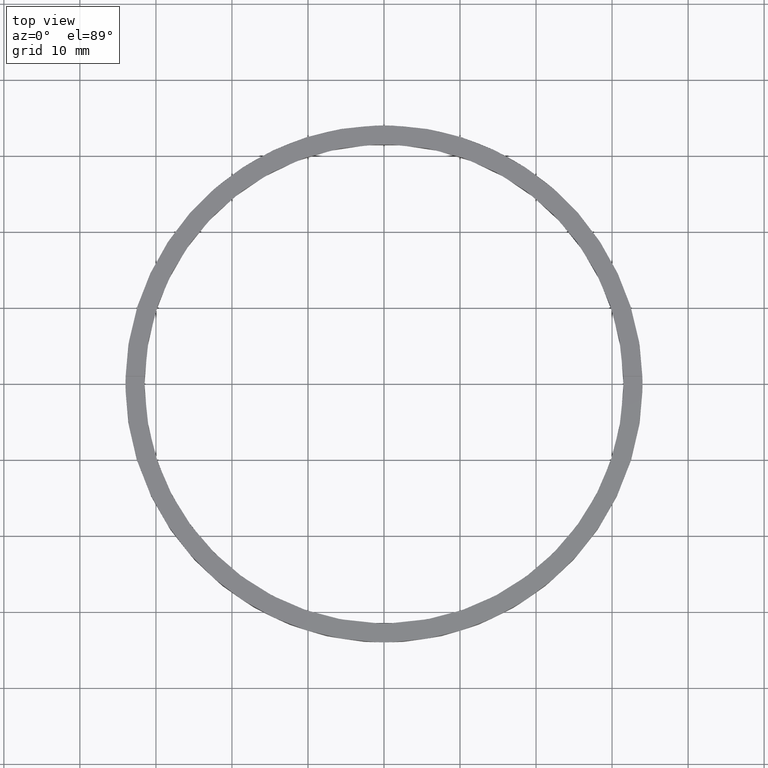
[diagram: clean part render]
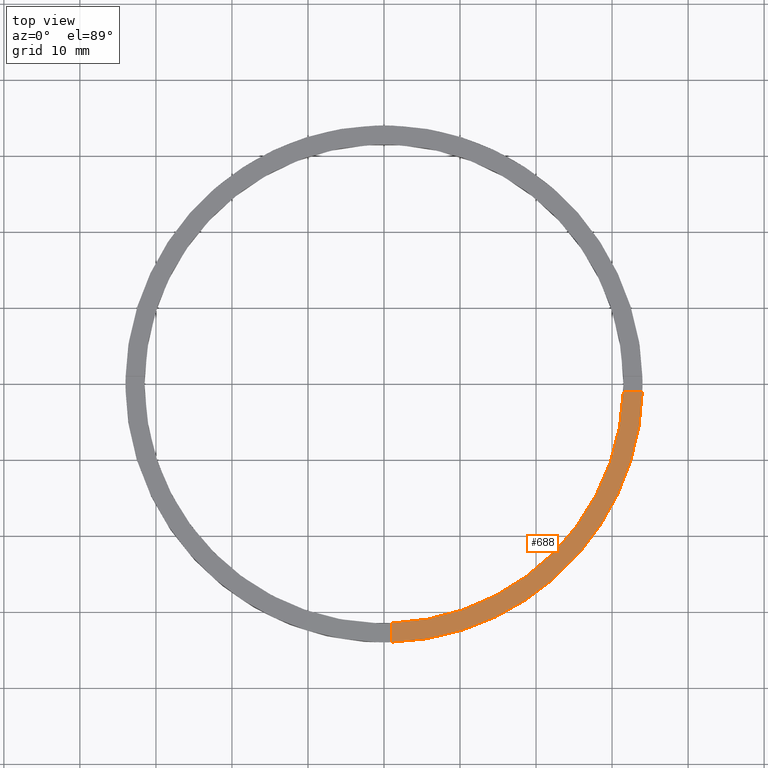
[diagram: same view with one face highlighted and labeled with its STEP entity id]
A machine part, top view. The second image highlights one B-rep face of the part: STEP entity #688.
In plain terms, the highlighted planar face has unit normal (0, 0, 1).
Its self-contained STEP definition (entity closure, byte-faithful):
#12 = AXIS2_PLACEMENT_3D ( 'NONE', #532, #288, #674 ) ;
#40 = VECTOR ( 'NONE', #556, 1000.000000000000000 ) ;
#51 = CARTESIAN_POINT ( 'NONE',  ( 0.9999999999998380185, -24.00000000000018119, 3.000000000000000000 ) ) ;
#88 = AXIS2_PLACEMENT_3D ( 'NONE', #304, #494, #578 ) ;
#125 = DIRECTION ( 'NONE',  ( 1.000000000000000000, 0.000000000000000000, -0.000000000000000000 ) ) ;
#155 = VERTEX_POINT ( 'NONE', #412 ) ;
#186 = CIRCLE ( 'NONE', #88, 34.00000000000000000 ) ;
#189 = CARTESIAN_POINT ( 'NONE',  ( 33.98529093593285211, -1.000000000000158096, 3.000000000000000000 ) ) ;
#199 = AXIS2_PLACEMENT_3D ( 'NONE', #366, #409, #125 ) ;
#208 = EDGE_CURVE ( 'NONE', #155, #354, #487, .T. ) ;
#211 = CARTESIAN_POINT ( 'NONE',  ( 0.9999999999998393507, -33.98529093593285921, 3.000000000000000000 ) ) ;
#228 = VECTOR ( 'NONE', #594, 1000.000000000000000 ) ;
#229 = EDGE_CURVE ( 'NONE', #388, #155, #740, .T. ) ;
#275 = PLANE ( 'NONE',  #199 ) ;
#283 = CARTESIAN_POINT ( 'NONE',  ( 23.99999999999999289, -1.000000000000158762, 3.000000000000000000 ) ) ;
#288 = DIRECTION ( 'NONE',  ( 0.000000000000000000, 0.000000000000000000, 1.000000000000000000 ) ) ;
#304 = CARTESIAN_POINT ( 'NONE',  ( 0.000000000000000000, 0.000000000000000000, 3.000000000000000000 ) ) ;
#321 = LINE ( 'NONE', #51, #40 ) ;
#343 = ORIENTED_EDGE ( 'NONE', *, *, #508, .F. ) ;
#354 = VERTEX_POINT ( 'NONE', #189 ) ;
#366 = CARTESIAN_POINT ( 'NONE',  ( 0.000000000000000000, 0.000000000000000000, 3.000000000000000000 ) ) ;
#388 = VERTEX_POINT ( 'NONE', #570 ) ;
#405 = ORIENTED_EDGE ( 'NONE', *, *, #406, .T. ) ;
#406 = EDGE_CURVE ( 'NONE', #652, #354, #186, .T. ) ;
#409 = DIRECTION ( 'NONE',  ( 0.000000000000000000, 0.000000000000000000, 1.000000000000000000 ) ) ;
#412 = CARTESIAN_POINT ( 'NONE',  ( 31.48412298286232414, -1.000000000000158318, 3.000000000000000000 ) ) ;
#487 = LINE ( 'NONE', #283, #228 ) ;
#494 = DIRECTION ( 'NONE',  ( 0.000000000000000000, 0.000000000000000000, 1.000000000000000000 ) ) ;
#508 = EDGE_CURVE ( 'NONE', #652, #388, #321, .T. ) ;
#532 = CARTESIAN_POINT ( 'NONE',  ( 0.000000000000000000, 0.000000000000000000, 3.000000000000000000 ) ) ;
#535 = EDGE_LOOP ( 'NONE', ( #673, #622, #343, #405 ) ) ;
#556 = DIRECTION ( 'NONE',  ( -1.301042606982605074E-16, 1.000000000000000000, -0.000000000000000000 ) ) ;
#570 = CARTESIAN_POINT ( 'NONE',  ( 0.9999999999998391287, -31.48412298286233479, 3.000000000000000000 ) ) ;
#578 = DIRECTION ( 'NONE',  ( 1.000000000000000000, 0.000000000000000000, 0.000000000000000000 ) ) ;
#593 = FACE_OUTER_BOUND ( 'NONE', #535, .T. ) ;
#594 = DIRECTION ( 'NONE',  ( 1.000000000000000000, 6.505213034913025371E-17, 0.000000000000000000 ) ) ;
#622 = ORIENTED_EDGE ( 'NONE', *, *, #229, .F. ) ;
#652 = VERTEX_POINT ( 'NONE', #211 ) ;
#673 = ORIENTED_EDGE ( 'NONE', *, *, #208, .F. ) ;
#674 = DIRECTION ( 'NONE',  ( 1.000000000000000000, 0.000000000000000000, 0.000000000000000000 ) ) ;
#688 = ADVANCED_FACE ( 'NONE', ( #593 ), #275, .T. ) ;
#740 = CIRCLE ( 'NONE', #12, 31.50000000000000000 ) ;